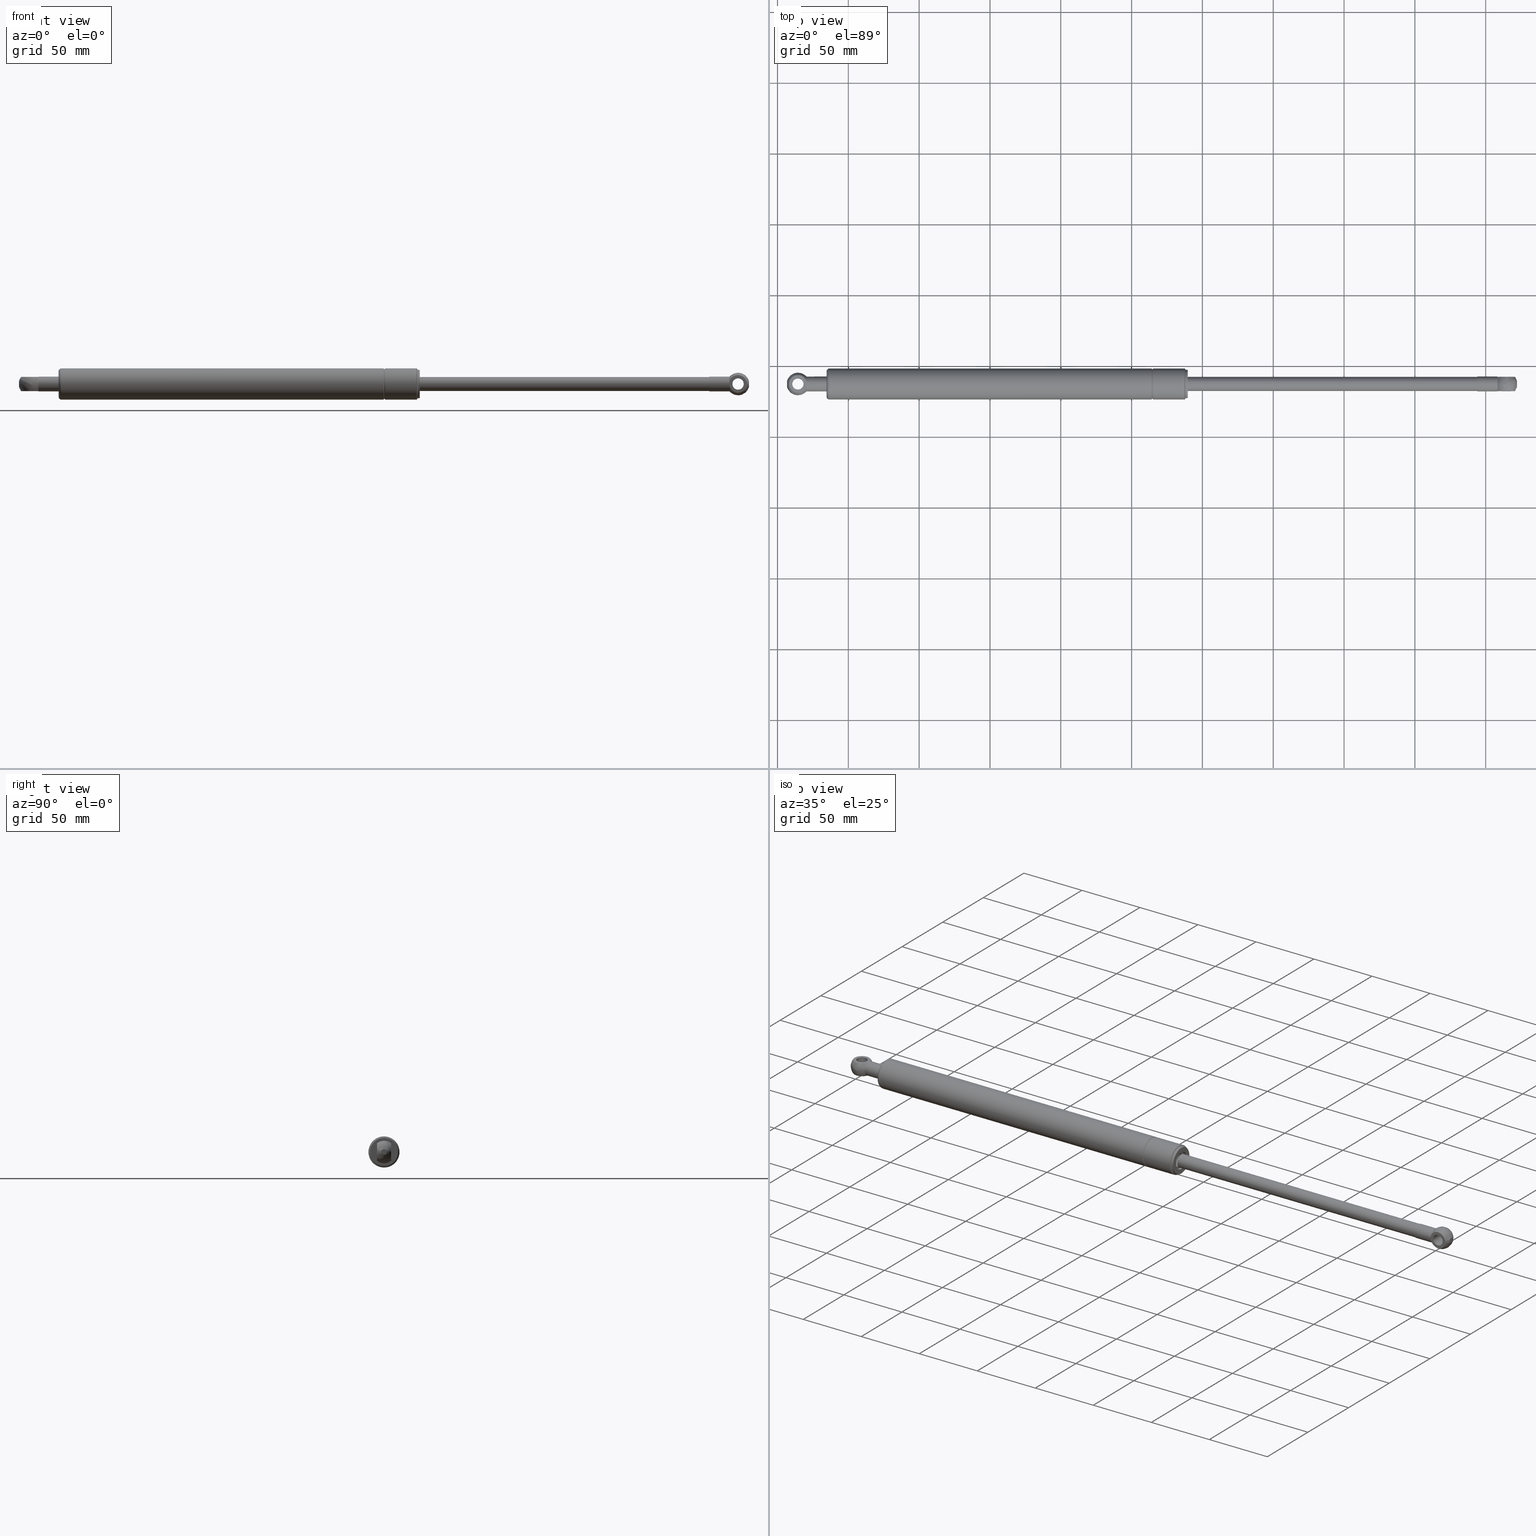
[diagram: canonical four-view strip — front | top / right | iso, engineering-drawing reading convention]
A machine part, canonical four-view strip (front | top / right | iso — engineering-drawing reading convention). The complete STEP part file that produces these views, byte-faithful:
ISO-10303-21;
HEADER;
/* Generated by software containing ST-Developer
 * from STEP Tools, Inc. (www.steptools.com) 
 */

FILE_DESCRIPTION(
/* description */ (''),
/* implementation_level */ '2;1');

FILE_NAME(
/* name */ '\\\\SYNOLOGYNAS\\web\\db2\\SB-500-H\\\X2\B3C4BA74\X0\\\DR_
SB-500-H.stp',
/* time_stamp */ '2023-11-29T14:32:56+09:00',
/* author */ ('user'),
/* organization */ (''),
/* preprocessor_version */ 'ST-DEVELOPER v15.6',
/* originating_system */ 'Autodesk Inventor 2015',
/* authorisation */ '');

FILE_SCHEMA (('AUTOMOTIVE_DESIGN { 1 0 10303 214 3 1 1 }'));
ENDSEC;

DATA;
#10=MECHANICAL_DESIGN_GEOMETRIC_PRESENTATION_REPRESENTATION('',(#43,#42,
#45,#44,#48,#47,#46,#49),#798);
#11=ITEM_DEFINED_TRANSFORMATION($,$,#427,#501);
#12=ITEM_DEFINED_TRANSFORMATION($,$,#451,#502);
#13=ITEM_DEFINED_TRANSFORMATION($,$,#463,#503);
#14=ITEM_DEFINED_TRANSFORMATION($,$,#476,#504);
#15=ITEM_DEFINED_TRANSFORMATION($,$,#476,#505);
#16=(
REPRESENTATION_RELATIONSHIP($,$,#820,#824)
REPRESENTATION_RELATIONSHIP_WITH_TRANSFORMATION(#11)
SHAPE_REPRESENTATION_RELATIONSHIP()
);
#17=(
REPRESENTATION_RELATIONSHIP($,$,#821,#824)
REPRESENTATION_RELATIONSHIP_WITH_TRANSFORMATION(#12)
SHAPE_REPRESENTATION_RELATIONSHIP()
);
#18=(
REPRESENTATION_RELATIONSHIP($,$,#822,#824)
REPRESENTATION_RELATIONSHIP_WITH_TRANSFORMATION(#13)
SHAPE_REPRESENTATION_RELATIONSHIP()
);
#19=(
REPRESENTATION_RELATIONSHIP($,$,#823,#824)
REPRESENTATION_RELATIONSHIP_WITH_TRANSFORMATION(#14)
SHAPE_REPRESENTATION_RELATIONSHIP()
);
#20=(
REPRESENTATION_RELATIONSHIP($,$,#823,#824)
REPRESENTATION_RELATIONSHIP_WITH_TRANSFORMATION(#15)
SHAPE_REPRESENTATION_RELATIONSHIP()
);
#21=CONTEXT_DEPENDENT_SHAPE_REPRESENTATION(#16,#815);
#22=CONTEXT_DEPENDENT_SHAPE_REPRESENTATION(#17,#816);
#23=CONTEXT_DEPENDENT_SHAPE_REPRESENTATION(#18,#817);
#24=CONTEXT_DEPENDENT_SHAPE_REPRESENTATION(#19,#818);
#25=CONTEXT_DEPENDENT_SHAPE_REPRESENTATION(#20,#819);
#26=NEXT_ASSEMBLY_USAGE_OCCURRENCE('DR_SB-500-H-BASE:1',$,$,#830,#826,$);
#27=NEXT_ASSEMBLY_USAGE_OCCURRENCE('DR_SB-500-H-SUPPORT:1',$,$,#830,#827,
$);
#28=NEXT_ASSEMBLY_USAGE_OCCURRENCE('DR_SB-500-H-RING:1',$,$,#830,#828,$);
#29=NEXT_ASSEMBLY_USAGE_OCCURRENCE('DR_SB-500-H HOLE:5',$,$,#830,#829,$);
#30=NEXT_ASSEMBLY_USAGE_OCCURRENCE('DR_SB-500-H HOLE:6',$,$,#830,#829,$);
#31=SPHERICAL_SURFACE('',#495,8.);
#32=B_SPLINE_CURVE_WITH_KNOTS('',3,(#748,#749,#750,#751,#752,#753),
 .UNSPECIFIED.,.F.,.F.,(4,2,4),(2.41667495412591,2.57738882372164,2.73810269331737),
 .UNSPECIFIED.);
#33=B_SPLINE_CURVE_WITH_KNOTS('',3,(#758,#759,#760,#761,#762,#763),
 .UNSPECIFIED.,.F.,.F.,(4,2,4),(0.698415738311486,0.859129607907215,1.01984347750294),
 .UNSPECIFIED.);
#34=SHAPE_REPRESENTATION_RELATIONSHIP('SRR','None',#820,#38);
#35=SHAPE_REPRESENTATION_RELATIONSHIP('SRR','None',#821,#39);
#36=SHAPE_REPRESENTATION_RELATIONSHIP('SRR','None',#822,#40);
#37=SHAPE_REPRESENTATION_RELATIONSHIP('SRR','None',#823,#41);
#38=ADVANCED_BREP_SHAPE_REPRESENTATION($,(#53,#54),#793);
#39=ADVANCED_BREP_SHAPE_REPRESENTATION($,(#55),#794);
#40=ADVANCED_BREP_SHAPE_REPRESENTATION($,(#56),#795);
#41=ADVANCED_BREP_SHAPE_REPRESENTATION($,(#57),#796);
#42=STYLED_ITEM('',(#850),#53);
#43=STYLED_ITEM('',(#850),#54);
#44=STYLED_ITEM('',(#852),#402);
#45=STYLED_ITEM('',(#851),#55);
#46=STYLED_ITEM('',(#853),#406);
#47=STYLED_ITEM('',(#850),#407);
#48=STYLED_ITEM('',(#851),#56);
#49=STYLED_ITEM('',(#854),#57);
#50=TOROIDAL_SURFACE('',#435,11.,0.5);
#51=TOROIDAL_SURFACE('',#438,11.,1.);
#52=TOROIDAL_SURFACE('',#443,9.00000000000001,2.);
#53=MANIFOLD_SOLID_BREP('\X2\C194B9ACB4DC\X0\1',#422);
#54=MANIFOLD_SOLID_BREP('\X2\C194B9ACB4DC\X0\1',#423);
#55=MANIFOLD_SOLID_BREP('\X2\C194B9ACB4DC\X0\1',#424);
#56=MANIFOLD_SOLID_BREP('\X2\C194B9ACB4DC\X0\1',#425);
#57=MANIFOLD_SOLID_BREP('\X2\C194B9ACB4DC\X0\1',#426);
#58=CYLINDRICAL_SURFACE('',#432,4.);
#59=CYLINDRICAL_SURFACE('',#441,10.);
#60=CYLINDRICAL_SURFACE('',#446,11.);
#61=CYLINDRICAL_SURFACE('',#447,9.);
#62=CYLINDRICAL_SURFACE('',#449,11.);
#63=CYLINDRICAL_SURFACE('',#455,4.);
#64=CYLINDRICAL_SURFACE('',#460,5.00000000000002);
#65=CYLINDRICAL_SURFACE('',#464,9.);
#66=CYLINDRICAL_SURFACE('',#469,6.5);
#67=CYLINDRICAL_SURFACE('',#473,5.);
#68=CYLINDRICAL_SURFACE('',#479,3.567);
#69=CYLINDRICAL_SURFACE('',#483,6.2449979983984);
#70=CYLINDRICAL_SURFACE('',#485,6.2449979983984);
#71=CYLINDRICAL_SURFACE('',#487,5.25);
#72=CYLINDRICAL_SURFACE('',#491,4.);
#73=PLANE('',#431);
#74=PLANE('',#434);
#75=PLANE('',#450);
#76=PLANE('',#457);
#77=PLANE('',#458);
#78=PLANE('',#462);
#79=PLANE('',#467);
#80=PLANE('',#471);
#81=PLANE('',#475);
#82=PLANE('',#481);
#83=PLANE('',#494);
#84=PLANE('',#498);
#85=PLANE('',#499);
#86=FACE_BOUND('',#149,.T.);
#87=FACE_BOUND('',#152,.T.);
#88=FACE_BOUND('',#155,.T.);
#89=FACE_BOUND('',#157,.T.);
#90=FACE_BOUND('',#159,.T.);
#91=FACE_BOUND('',#161,.T.);
#92=FACE_BOUND('',#163,.T.);
#93=FACE_BOUND('',#165,.T.);
#94=FACE_BOUND('',#167,.T.);
#95=FACE_BOUND('',#169,.T.);
#96=FACE_BOUND('',#171,.T.);
#97=FACE_BOUND('',#173,.T.);
#98=FACE_BOUND('',#177,.T.);
#99=FACE_BOUND('',#179,.T.);
#100=FACE_BOUND('',#181,.T.);
#101=FACE_BOUND('',#183,.T.);
#102=FACE_BOUND('',#185,.T.);
#103=FACE_BOUND('',#187,.T.);
#104=FACE_BOUND('',#189,.T.);
#105=FACE_BOUND('',#191,.T.);
#106=FACE_BOUND('',#194,.T.);
#107=FACE_BOUND('',#199,.T.);
#108=FACE_BOUND('',#201,.T.);
#109=FACE_BOUND('',#203,.T.);
#110=FACE_BOUND('',#204,.T.);
#111=FACE_BOUND('',#205,.T.);
#112=FACE_BOUND('',#207,.T.);
#113=FACE_BOUND('',#209,.T.);
#114=FACE_OUTER_BOUND('',#148,.T.);
#115=FACE_OUTER_BOUND('',#150,.T.);
#116=FACE_OUTER_BOUND('',#151,.T.);
#117=FACE_OUTER_BOUND('',#153,.T.);
#118=FACE_OUTER_BOUND('',#154,.T.);
#119=FACE_OUTER_BOUND('',#156,.T.);
#120=FACE_OUTER_BOUND('',#158,.T.);
#121=FACE_OUTER_BOUND('',#160,.T.);
#122=FACE_OUTER_BOUND('',#162,.T.);
#123=FACE_OUTER_BOUND('',#164,.T.);
#124=FACE_OUTER_BOUND('',#166,.T.);
#125=FACE_OUTER_BOUND('',#168,.T.);
#126=FACE_OUTER_BOUND('',#170,.T.);
#127=FACE_OUTER_BOUND('',#172,.T.);
#128=FACE_OUTER_BOUND('',#174,.T.);
#129=FACE_OUTER_BOUND('',#175,.T.);
#130=FACE_OUTER_BOUND('',#176,.T.);
#131=FACE_OUTER_BOUND('',#178,.T.);
#132=FACE_OUTER_BOUND('',#180,.T.);
#133=FACE_OUTER_BOUND('',#182,.T.);
#134=FACE_OUTER_BOUND('',#184,.T.);
#135=FACE_OUTER_BOUND('',#186,.T.);
#136=FACE_OUTER_BOUND('',#188,.T.);
#137=FACE_OUTER_BOUND('',#190,.T.);
#138=FACE_OUTER_BOUND('',#192,.T.);
#139=FACE_OUTER_BOUND('',#193,.T.);
#140=FACE_OUTER_BOUND('',#195,.T.);
#141=FACE_OUTER_BOUND('',#196,.T.);
#142=FACE_OUTER_BOUND('',#197,.T.);
#143=FACE_OUTER_BOUND('',#198,.T.);
#144=FACE_OUTER_BOUND('',#200,.T.);
#145=FACE_OUTER_BOUND('',#202,.T.);
#146=FACE_OUTER_BOUND('',#206,.T.);
#147=FACE_OUTER_BOUND('',#208,.T.);
#148=EDGE_LOOP('',(#312));
#149=EDGE_LOOP('',(#313));
#150=EDGE_LOOP('',(#314));
#151=EDGE_LOOP('',(#315));
#152=EDGE_LOOP('',(#316));
#153=EDGE_LOOP('',(#317));
#154=EDGE_LOOP('',(#318));
#155=EDGE_LOOP('',(#319));
#156=EDGE_LOOP('',(#320));
#157=EDGE_LOOP('',(#321));
#158=EDGE_LOOP('',(#322));
#159=EDGE_LOOP('',(#323));
#160=EDGE_LOOP('',(#324));
#161=EDGE_LOOP('',(#325));
#162=EDGE_LOOP('',(#326));
#163=EDGE_LOOP('',(#327));
#164=EDGE_LOOP('',(#328));
#165=EDGE_LOOP('',(#329));
#166=EDGE_LOOP('',(#330));
#167=EDGE_LOOP('',(#331));
#168=EDGE_LOOP('',(#332));
#169=EDGE_LOOP('',(#333));
#170=EDGE_LOOP('',(#334));
#171=EDGE_LOOP('',(#335));
#172=EDGE_LOOP('',(#336));
#173=EDGE_LOOP('',(#337));
#174=EDGE_LOOP('',(#338));
#175=EDGE_LOOP('',(#339));
#176=EDGE_LOOP('',(#340));
#177=EDGE_LOOP('',(#341));
#178=EDGE_LOOP('',(#342));
#179=EDGE_LOOP('',(#343));
#180=EDGE_LOOP('',(#344));
#181=EDGE_LOOP('',(#345));
#182=EDGE_LOOP('',(#346));
#183=EDGE_LOOP('',(#347));
#184=EDGE_LOOP('',(#348));
#185=EDGE_LOOP('',(#349));
#186=EDGE_LOOP('',(#350));
#187=EDGE_LOOP('',(#351));
#188=EDGE_LOOP('',(#352));
#189=EDGE_LOOP('',(#353));
#190=EDGE_LOOP('',(#354));
#191=EDGE_LOOP('',(#355));
#192=EDGE_LOOP('',(#356));
#193=EDGE_LOOP('',(#357));
#194=EDGE_LOOP('',(#358));
#195=EDGE_LOOP('',(#359));
#196=EDGE_LOOP('',(#360,#361));
#197=EDGE_LOOP('',(#362,#363));
#198=EDGE_LOOP('',(#364,#365,#366,#367));
#199=EDGE_LOOP('',(#368));
#200=EDGE_LOOP('',(#369));
#201=EDGE_LOOP('',(#370));
#202=EDGE_LOOP('',(#371));
#203=EDGE_LOOP('',(#372));
#204=EDGE_LOOP('',(#373));
#205=EDGE_LOOP('',(#374,#375,#376,#377));
#206=EDGE_LOOP('',(#378,#379));
#207=EDGE_LOOP('',(#380));
#208=EDGE_LOOP('',(#381,#382));
#209=EDGE_LOOP('',(#383));
#210=CIRCLE('',#429,3.);
#211=CIRCLE('',#430,4.);
#212=CIRCLE('',#433,4.);
#213=CIRCLE('',#436,11.);
#214=CIRCLE('',#437,11.);
#215=CIRCLE('',#439,11.);
#216=CIRCLE('',#440,10.);
#217=CIRCLE('',#442,10.);
#218=CIRCLE('',#444,9.);
#219=CIRCLE('',#445,11.);
#220=CIRCLE('',#448,9.);
#221=CIRCLE('',#453,4.);
#222=CIRCLE('',#454,3.);
#223=CIRCLE('',#456,4.);
#224=CIRCLE('',#459,5.);
#225=CIRCLE('',#461,5.00000000000003);
#226=CIRCLE('',#465,9.);
#227=CIRCLE('',#466,9.);
#228=CIRCLE('',#468,6.5);
#229=CIRCLE('',#470,6.5);
#230=CIRCLE('',#472,5.);
#231=CIRCLE('',#474,5.);
#232=CIRCLE('',#478,3.567);
#233=CIRCLE('',#480,3.567);
#234=CIRCLE('',#482,1.98431348329845);
#235=CIRCLE('',#484,6.2449979983984);
#236=CIRCLE('',#486,6.2449979983984);
#237=CIRCLE('',#488,5.25);
#238=CIRCLE('',#489,5.25);
#239=CIRCLE('',#490,5.25);
#240=CIRCLE('',#492,4.);
#241=CIRCLE('',#493,4.);
#242=CIRCLE('',#496,6.2449979983984);
#243=CIRCLE('',#497,6.2449979983984);
#244=VERTEX_POINT('',#666);
#245=VERTEX_POINT('',#668);
#246=VERTEX_POINT('',#672);
#247=VERTEX_POINT('',#676);
#248=VERTEX_POINT('',#678);
#249=VERTEX_POINT('',#681);
#250=VERTEX_POINT('',#683);
#251=VERTEX_POINT('',#686);
#252=VERTEX_POINT('',#689);
#253=VERTEX_POINT('',#691);
#254=VERTEX_POINT('',#695);
#255=VERTEX_POINT('',#701);
#256=VERTEX_POINT('',#703);
#257=VERTEX_POINT('',#706);
#258=VERTEX_POINT('',#710);
#259=VERTEX_POINT('',#713);
#260=VERTEX_POINT('',#718);
#261=VERTEX_POINT('',#720);
#262=VERTEX_POINT('',#723);
#263=VERTEX_POINT('',#726);
#264=VERTEX_POINT('',#729);
#265=VERTEX_POINT('',#732);
#266=VERTEX_POINT('',#737);
#267=VERTEX_POINT('',#740);
#268=VERTEX_POINT('',#743);
#269=VERTEX_POINT('',#746);
#270=VERTEX_POINT('',#747);
#271=VERTEX_POINT('',#756);
#272=VERTEX_POINT('',#757);
#273=VERTEX_POINT('',#768);
#274=VERTEX_POINT('',#771);
#275=VERTEX_POINT('',#773);
#276=EDGE_CURVE('',#244,#244,#210,.T.);
#277=EDGE_CURVE('',#245,#245,#211,.T.);
#278=EDGE_CURVE('',#246,#246,#212,.T.);
#279=EDGE_CURVE('',#247,#247,#213,.T.);
#280=EDGE_CURVE('',#248,#248,#214,.T.);
#281=EDGE_CURVE('',#249,#249,#215,.T.);
#282=EDGE_CURVE('',#250,#250,#216,.T.);
#283=EDGE_CURVE('',#251,#251,#217,.T.);
#284=EDGE_CURVE('',#252,#252,#218,.T.);
#285=EDGE_CURVE('',#253,#253,#219,.T.);
#286=EDGE_CURVE('',#254,#254,#220,.T.);
#287=EDGE_CURVE('',#255,#255,#221,.T.);
#288=EDGE_CURVE('',#256,#256,#222,.T.);
#289=EDGE_CURVE('',#257,#257,#223,.T.);
#290=EDGE_CURVE('',#258,#258,#224,.T.);
#291=EDGE_CURVE('',#259,#259,#225,.T.);
#292=EDGE_CURVE('',#260,#260,#226,.T.);
#293=EDGE_CURVE('',#261,#261,#227,.T.);
#294=EDGE_CURVE('',#262,#262,#228,.T.);
#295=EDGE_CURVE('',#263,#263,#229,.T.);
#296=EDGE_CURVE('',#264,#264,#230,.T.);
#297=EDGE_CURVE('',#265,#265,#231,.T.);
#298=EDGE_CURVE('',#266,#266,#232,.T.);
#299=EDGE_CURVE('',#267,#267,#233,.T.);
#300=EDGE_CURVE('',#268,#268,#234,.T.);
#301=EDGE_CURVE('',#269,#270,#32,.T.);
#302=EDGE_CURVE('',#269,#270,#235,.T.);
#303=EDGE_CURVE('',#271,#272,#33,.T.);
#304=EDGE_CURVE('',#271,#272,#236,.T.);
#305=EDGE_CURVE('',#271,#270,#237,.T.);
#306=EDGE_CURVE('',#269,#272,#238,.T.);
#307=EDGE_CURVE('',#273,#273,#239,.T.);
#308=EDGE_CURVE('',#274,#274,#240,.T.);
#309=EDGE_CURVE('',#275,#275,#241,.T.);
#310=EDGE_CURVE('',#270,#269,#242,.T.);
#311=EDGE_CURVE('',#272,#271,#243,.T.);
#312=ORIENTED_EDGE('',*,*,#276,.T.);
#313=ORIENTED_EDGE('',*,*,#277,.T.);
#314=ORIENTED_EDGE('',*,*,#276,.F.);
#315=ORIENTED_EDGE('',*,*,#278,.F.);
#316=ORIENTED_EDGE('',*,*,#277,.F.);
#317=ORIENTED_EDGE('',*,*,#278,.T.);
#318=ORIENTED_EDGE('',*,*,#279,.T.);
#319=ORIENTED_EDGE('',*,*,#280,.F.);
#320=ORIENTED_EDGE('',*,*,#281,.T.);
#321=ORIENTED_EDGE('',*,*,#282,.T.);
#322=ORIENTED_EDGE('',*,*,#283,.F.);
#323=ORIENTED_EDGE('',*,*,#282,.F.);
#324=ORIENTED_EDGE('',*,*,#284,.T.);
#325=ORIENTED_EDGE('',*,*,#285,.T.);
#326=ORIENTED_EDGE('',*,*,#279,.F.);
#327=ORIENTED_EDGE('',*,*,#285,.F.);
#328=ORIENTED_EDGE('',*,*,#284,.F.);
#329=ORIENTED_EDGE('',*,*,#286,.F.);
#330=ORIENTED_EDGE('',*,*,#281,.F.);
#331=ORIENTED_EDGE('',*,*,#280,.T.);
#332=ORIENTED_EDGE('',*,*,#283,.T.);
#333=ORIENTED_EDGE('',*,*,#286,.T.);
#334=ORIENTED_EDGE('',*,*,#287,.T.);
#335=ORIENTED_EDGE('',*,*,#288,.T.);
#336=ORIENTED_EDGE('',*,*,#289,.F.);
#337=ORIENTED_EDGE('',*,*,#287,.F.);
#338=ORIENTED_EDGE('',*,*,#288,.F.);
#339=ORIENTED_EDGE('',*,*,#290,.F.);
#340=ORIENTED_EDGE('',*,*,#291,.F.);
#341=ORIENTED_EDGE('',*,*,#290,.T.);
#342=ORIENTED_EDGE('',*,*,#291,.T.);
#343=ORIENTED_EDGE('',*,*,#289,.T.);
#344=ORIENTED_EDGE('',*,*,#292,.F.);
#345=ORIENTED_EDGE('',*,*,#293,.T.);
#346=ORIENTED_EDGE('',*,*,#292,.T.);
#347=ORIENTED_EDGE('',*,*,#294,.F.);
#348=ORIENTED_EDGE('',*,*,#295,.F.);
#349=ORIENTED_EDGE('',*,*,#294,.T.);
#350=ORIENTED_EDGE('',*,*,#295,.T.);
#351=ORIENTED_EDGE('',*,*,#296,.F.);
#352=ORIENTED_EDGE('',*,*,#297,.F.);
#353=ORIENTED_EDGE('',*,*,#296,.T.);
#354=ORIENTED_EDGE('',*,*,#293,.F.);
#355=ORIENTED_EDGE('',*,*,#297,.T.);
#356=ORIENTED_EDGE('',*,*,#298,.T.);
#357=ORIENTED_EDGE('',*,*,#299,.F.);
#358=ORIENTED_EDGE('',*,*,#298,.F.);
#359=ORIENTED_EDGE('',*,*,#300,.F.);
#360=ORIENTED_EDGE('',*,*,#301,.F.);
#361=ORIENTED_EDGE('',*,*,#302,.T.);
#362=ORIENTED_EDGE('',*,*,#303,.F.);
#363=ORIENTED_EDGE('',*,*,#304,.T.);
#364=ORIENTED_EDGE('',*,*,#301,.T.);
#365=ORIENTED_EDGE('',*,*,#305,.F.);
#366=ORIENTED_EDGE('',*,*,#303,.T.);
#367=ORIENTED_EDGE('',*,*,#306,.F.);
#368=ORIENTED_EDGE('',*,*,#307,.F.);
#369=ORIENTED_EDGE('',*,*,#308,.F.);
#370=ORIENTED_EDGE('',*,*,#309,.F.);
#371=ORIENTED_EDGE('',*,*,#307,.T.);
#372=ORIENTED_EDGE('',*,*,#299,.T.);
#373=ORIENTED_EDGE('',*,*,#300,.T.);
#374=ORIENTED_EDGE('',*,*,#305,.T.);
#375=ORIENTED_EDGE('',*,*,#310,.T.);
#376=ORIENTED_EDGE('',*,*,#306,.T.);
#377=ORIENTED_EDGE('',*,*,#311,.T.);
#378=ORIENTED_EDGE('',*,*,#310,.F.);
#379=ORIENTED_EDGE('',*,*,#302,.F.);
#380=ORIENTED_EDGE('',*,*,#308,.T.);
#381=ORIENTED_EDGE('',*,*,#311,.F.);
#382=ORIENTED_EDGE('',*,*,#304,.F.);
#383=ORIENTED_EDGE('',*,*,#309,.T.);
#384=CONICAL_SURFACE('',#428,3.5,44.9999999999996);
#385=CONICAL_SURFACE('',#452,3.5,45.);
#386=CONICAL_SURFACE('',#477,1.7835,59.);
#387=ADVANCED_FACE('',(#114,#86),#384,.T.);
#388=ADVANCED_FACE('',(#115),#73,.T.);
#389=ADVANCED_FACE('',(#116,#87),#58,.T.);
#390=ADVANCED_FACE('',(#117),#74,.T.);
#391=ADVANCED_FACE('',(#118,#88),#50,.F.);
#392=ADVANCED_FACE('',(#119,#89),#51,.F.);
#393=ADVANCED_FACE('',(#120,#90),#59,.T.);
#394=ADVANCED_FACE('',(#121,#91),#52,.T.);
#395=ADVANCED_FACE('',(#122,#92),#60,.T.);
#396=ADVANCED_FACE('',(#123,#93),#61,.F.);
#397=ADVANCED_FACE('',(#124,#94),#62,.T.);
#398=ADVANCED_FACE('',(#125,#95),#75,.T.);
#399=ADVANCED_FACE('',(#126,#96),#385,.T.);
#400=ADVANCED_FACE('',(#127,#97),#63,.T.);
#401=ADVANCED_FACE('',(#128),#76,.F.);
#402=ADVANCED_FACE('',(#129),#77,.T.);
#403=ADVANCED_FACE('',(#130,#98),#64,.T.);
#404=ADVANCED_FACE('',(#131,#99),#78,.T.);
#405=ADVANCED_FACE('',(#132,#100),#65,.T.);
#406=ADVANCED_FACE('',(#133,#101),#79,.T.);
#407=ADVANCED_FACE('',(#134,#102),#66,.F.);
#408=ADVANCED_FACE('',(#135,#103),#80,.T.);
#409=ADVANCED_FACE('',(#136,#104),#67,.F.);
#410=ADVANCED_FACE('',(#137,#105),#81,.T.);
#411=ADVANCED_FACE('',(#138),#386,.F.);
#412=ADVANCED_FACE('',(#139,#106),#68,.F.);
#413=ADVANCED_FACE('',(#140),#82,.F.);
#414=ADVANCED_FACE('',(#141),#69,.F.);
#415=ADVANCED_FACE('',(#142),#70,.F.);
#416=ADVANCED_FACE('',(#143,#107),#71,.T.);
#417=ADVANCED_FACE('',(#144,#108),#72,.F.);
#418=ADVANCED_FACE('',(#145,#109),#83,.F.);
#419=ADVANCED_FACE('',(#110,#111),#31,.T.);
#420=ADVANCED_FACE('',(#146,#112),#84,.F.);
#421=ADVANCED_FACE('',(#147,#113),#85,.F.);
#422=CLOSED_SHELL('',(#387,#388,#389,#390));
#423=CLOSED_SHELL('',(#391,#392,#393,#394,#395,#396,#397,#398));
#424=CLOSED_SHELL('',(#399,#400,#401,#402,#403,#404));
#425=CLOSED_SHELL('',(#405,#406,#407,#408,#409,#410));
#426=CLOSED_SHELL('',(#411,#412,#413,#414,#415,#416,#417,#418,#419,#420,
#421));
#427=AXIS2_PLACEMENT_3D('placement',#664,#506,#507);
#428=AXIS2_PLACEMENT_3D('',#665,#508,#509);
#429=AXIS2_PLACEMENT_3D('',#667,#510,#511);
#430=AXIS2_PLACEMENT_3D('',#669,#512,#513);
#431=AXIS2_PLACEMENT_3D('',#670,#514,#515);
#432=AXIS2_PLACEMENT_3D('',#671,#516,#517);
#433=AXIS2_PLACEMENT_3D('',#673,#518,#519);
#434=AXIS2_PLACEMENT_3D('',#674,#520,#521);
#435=AXIS2_PLACEMENT_3D('',#675,#522,#523);
#436=AXIS2_PLACEMENT_3D('',#677,#524,#525);
#437=AXIS2_PLACEMENT_3D('',#679,#526,#527);
#438=AXIS2_PLACEMENT_3D('',#680,#528,#529);
#439=AXIS2_PLACEMENT_3D('',#682,#530,#531);
#440=AXIS2_PLACEMENT_3D('',#684,#532,#533);
#441=AXIS2_PLACEMENT_3D('',#685,#534,#535);
#442=AXIS2_PLACEMENT_3D('',#687,#536,#537);
#443=AXIS2_PLACEMENT_3D('',#688,#538,#539);
#444=AXIS2_PLACEMENT_3D('',#690,#540,#541);
#445=AXIS2_PLACEMENT_3D('',#692,#542,#543);
#446=AXIS2_PLACEMENT_3D('',#693,#544,#545);
#447=AXIS2_PLACEMENT_3D('',#694,#546,#547);
#448=AXIS2_PLACEMENT_3D('',#696,#548,#549);
#449=AXIS2_PLACEMENT_3D('',#697,#550,#551);
#450=AXIS2_PLACEMENT_3D('',#698,#552,#553);
#451=AXIS2_PLACEMENT_3D('placement',#699,#554,#555);
#452=AXIS2_PLACEMENT_3D('',#700,#556,#557);
#453=AXIS2_PLACEMENT_3D('',#702,#558,#559);
#454=AXIS2_PLACEMENT_3D('',#704,#560,#561);
#455=AXIS2_PLACEMENT_3D('',#705,#562,#563);
#456=AXIS2_PLACEMENT_3D('',#707,#564,#565);
#457=AXIS2_PLACEMENT_3D('',#708,#566,#567);
#458=AXIS2_PLACEMENT_3D('',#709,#568,#569);
#459=AXIS2_PLACEMENT_3D('',#711,#570,#571);
#460=AXIS2_PLACEMENT_3D('',#712,#572,#573);
#461=AXIS2_PLACEMENT_3D('',#714,#574,#575);
#462=AXIS2_PLACEMENT_3D('',#715,#576,#577);
#463=AXIS2_PLACEMENT_3D('placement',#716,#578,#579);
#464=AXIS2_PLACEMENT_3D('',#717,#580,#581);
#465=AXIS2_PLACEMENT_3D('',#719,#582,#583);
#466=AXIS2_PLACEMENT_3D('',#721,#584,#585);
#467=AXIS2_PLACEMENT_3D('',#722,#586,#587);
#468=AXIS2_PLACEMENT_3D('',#724,#588,#589);
#469=AXIS2_PLACEMENT_3D('',#725,#590,#591);
#470=AXIS2_PLACEMENT_3D('',#727,#592,#593);
#471=AXIS2_PLACEMENT_3D('',#728,#594,#595);
#472=AXIS2_PLACEMENT_3D('',#730,#596,#597);
#473=AXIS2_PLACEMENT_3D('',#731,#598,#599);
#474=AXIS2_PLACEMENT_3D('',#733,#600,#601);
#475=AXIS2_PLACEMENT_3D('',#734,#602,#603);
#476=AXIS2_PLACEMENT_3D('placement',#735,#604,#605);
#477=AXIS2_PLACEMENT_3D('',#736,#606,#607);
#478=AXIS2_PLACEMENT_3D('',#738,#608,#609);
#479=AXIS2_PLACEMENT_3D('',#739,#610,#611);
#480=AXIS2_PLACEMENT_3D('',#741,#612,#613);
#481=AXIS2_PLACEMENT_3D('',#742,#614,#615);
#482=AXIS2_PLACEMENT_3D('',#744,#616,#617);
#483=AXIS2_PLACEMENT_3D('',#745,#618,#619);
#484=AXIS2_PLACEMENT_3D('',#754,#620,#621);
#485=AXIS2_PLACEMENT_3D('',#755,#622,#623);
#486=AXIS2_PLACEMENT_3D('',#764,#624,#625);
#487=AXIS2_PLACEMENT_3D('',#765,#626,#627);
#488=AXIS2_PLACEMENT_3D('',#766,#628,#629);
#489=AXIS2_PLACEMENT_3D('',#767,#630,#631);
#490=AXIS2_PLACEMENT_3D('',#769,#632,#633);
#491=AXIS2_PLACEMENT_3D('',#770,#634,#635);
#492=AXIS2_PLACEMENT_3D('',#772,#636,#637);
#493=AXIS2_PLACEMENT_3D('',#774,#638,#639);
#494=AXIS2_PLACEMENT_3D('',#775,#640,#641);
#495=AXIS2_PLACEMENT_3D('',#776,#642,#643);
#496=AXIS2_PLACEMENT_3D('',#777,#644,#645);
#497=AXIS2_PLACEMENT_3D('',#778,#646,#647);
#498=AXIS2_PLACEMENT_3D('',#779,#648,#649);
#499=AXIS2_PLACEMENT_3D('',#780,#650,#651);
#500=AXIS2_PLACEMENT_3D('placement',#781,#652,#653);
#501=AXIS2_PLACEMENT_3D('',#782,#654,#655);
#502=AXIS2_PLACEMENT_3D('',#783,#656,#657);
#503=AXIS2_PLACEMENT_3D('',#784,#658,#659);
#504=AXIS2_PLACEMENT_3D('',#785,#660,#661);
#505=AXIS2_PLACEMENT_3D('',#786,#662,#663);
#506=DIRECTION('axis',(0.,0.,1.));
#507=DIRECTION('refdir',(1.,0.,0.));
#508=DIRECTION('center_axis',(-1.,0.,1.18952466924125E-16));
#509=DIRECTION('ref_axis',(-5.09796286817675E-17,0.,-1.));
#510=DIRECTION('center_axis',(-1.,0.,1.18952466924124E-16));
#511=DIRECTION('ref_axis',(-1.18952466924124E-16,0.,-1.));
#512=DIRECTION('center_axis',(1.,0.,-1.18952466924124E-16));
#513=DIRECTION('ref_axis',(0.,0.,-1.));
#514=DIRECTION('center_axis',(1.,0.,-1.18952466924124E-16));
#515=DIRECTION('ref_axis',(0.,0.,-1.));
#516=DIRECTION('center_axis',(-1.,0.,1.18952466924124E-16));
#517=DIRECTION('ref_axis',(0.,0.,1.));
#518=DIRECTION('center_axis',(-1.,0.,1.18952466924124E-16));
#519=DIRECTION('ref_axis',(0.,0.,1.));
#520=DIRECTION('center_axis',(-1.,0.,1.18952466924124E-16));
#521=DIRECTION('ref_axis',(0.,0.,1.));
#522=DIRECTION('center_axis',(-1.,0.,0.));
#523=DIRECTION('ref_axis',(0.,0.,1.));
#524=DIRECTION('center_axis',(-1.,0.,0.));
#525=DIRECTION('ref_axis',(0.,0.,1.));
#526=DIRECTION('center_axis',(-1.,0.,0.));
#527=DIRECTION('ref_axis',(0.,0.,1.));
#528=DIRECTION('center_axis',(-1.,0.,0.));
#529=DIRECTION('ref_axis',(0.,0.,1.));
#530=DIRECTION('center_axis',(-1.,0.,0.));
#531=DIRECTION('ref_axis',(0.,0.,1.));
#532=DIRECTION('center_axis',(1.,0.,0.));
#533=DIRECTION('ref_axis',(0.,1.22464679914735E-16,-1.));
#534=DIRECTION('center_axis',(-1.,0.,0.));
#535=DIRECTION('ref_axis',(0.,0.,1.));
#536=DIRECTION('center_axis',(-1.,0.,0.));
#537=DIRECTION('ref_axis',(0.,0.,1.));
#538=DIRECTION('center_axis',(-1.,0.,0.));
#539=DIRECTION('ref_axis',(0.,0.,1.));
#540=DIRECTION('center_axis',(-1.,0.,0.));
#541=DIRECTION('ref_axis',(0.,-1.,0.));
#542=DIRECTION('center_axis',(1.,0.,0.));
#543=DIRECTION('ref_axis',(0.,1.22464679914735E-16,-1.));
#544=DIRECTION('center_axis',(-1.,0.,0.));
#545=DIRECTION('ref_axis',(0.,0.,1.));
#546=DIRECTION('center_axis',(-1.,0.,0.));
#547=DIRECTION('ref_axis',(0.,-1.,0.));
#548=DIRECTION('center_axis',(1.,0.,0.));
#549=DIRECTION('ref_axis',(0.,-1.,0.));
#550=DIRECTION('center_axis',(-1.,0.,0.));
#551=DIRECTION('ref_axis',(0.,0.,1.));
#552=DIRECTION('center_axis',(-1.,0.,0.));
#553=DIRECTION('ref_axis',(0.,0.,1.));
#554=DIRECTION('axis',(0.,0.,1.));
#555=DIRECTION('refdir',(1.,0.,0.));
#556=DIRECTION('center_axis',(1.,0.,0.));
#557=DIRECTION('ref_axis',(0.,0.,-1.));
#558=DIRECTION('center_axis',(-1.,0.,0.));
#559=DIRECTION('ref_axis',(0.,0.,-1.));
#560=DIRECTION('center_axis',(1.,0.,0.));
#561=DIRECTION('ref_axis',(0.,0.,-1.));
#562=DIRECTION('center_axis',(-1.,0.,0.));
#563=DIRECTION('ref_axis',(0.,0.,1.));
#564=DIRECTION('center_axis',(1.,0.,0.));
#565=DIRECTION('ref_axis',(0.,0.,1.));
#566=DIRECTION('center_axis',(1.,0.,0.));
#567=DIRECTION('ref_axis',(0.,0.,-1.));
#568=DIRECTION('center_axis',(1.,0.,0.));
#569=DIRECTION('ref_axis',(0.,0.,-1.));
#570=DIRECTION('center_axis',(-1.,0.,0.));
#571=DIRECTION('ref_axis',(0.,0.,1.));
#572=DIRECTION('center_axis',(-1.,0.,0.));
#573=DIRECTION('ref_axis',(0.,0.,1.));
#574=DIRECTION('center_axis',(-1.,0.,0.));
#575=DIRECTION('ref_axis',(0.,0.,1.));
#576=DIRECTION('center_axis',(-1.,0.,0.));
#577=DIRECTION('ref_axis',(0.,0.,1.));
#578=DIRECTION('axis',(0.,0.,1.));
#579=DIRECTION('refdir',(1.,0.,0.));
#580=DIRECTION('center_axis',(-1.,0.,4.93038065763132E-32));
#581=DIRECTION('ref_axis',(0.,0.,1.));
#582=DIRECTION('center_axis',(-1.,0.,4.93038065763132E-32));
#583=DIRECTION('ref_axis',(0.,0.,1.));
#584=DIRECTION('center_axis',(-1.,0.,4.93038065763132E-32));
#585=DIRECTION('ref_axis',(0.,0.,1.));
#586=DIRECTION('center_axis',(-1.,0.,4.93038065763132E-32));
#587=DIRECTION('ref_axis',(4.93038065763132E-32,0.,1.));
#588=DIRECTION('center_axis',(-1.,0.,4.93038065763132E-32));
#589=DIRECTION('ref_axis',(0.,0.,1.));
#590=DIRECTION('center_axis',(-1.,0.,4.93038065763132E-32));
#591=DIRECTION('ref_axis',(0.,0.,1.));
#592=DIRECTION('center_axis',(-1.,0.,4.93038065763132E-32));
#593=DIRECTION('ref_axis',(0.,0.,1.));
#594=DIRECTION('center_axis',(-1.,0.,4.93038065763132E-32));
#595=DIRECTION('ref_axis',(0.,0.,1.));
#596=DIRECTION('center_axis',(-1.,0.,4.93038065763132E-32));
#597=DIRECTION('ref_axis',(0.,0.,1.));
#598=DIRECTION('center_axis',(-1.,0.,4.93038065763132E-32));
#599=DIRECTION('ref_axis',(0.,0.,1.));
#600=DIRECTION('center_axis',(-1.,0.,4.93038065763132E-32));
#601=DIRECTION('ref_axis',(0.,0.,1.));
#602=DIRECTION('center_axis',(1.,0.,-4.93038065763132E-32));
#603=DIRECTION('ref_axis',(0.,0.,-1.));
#604=DIRECTION('axis',(0.,0.,1.));
#605=DIRECTION('refdir',(1.,0.,0.));
#606=DIRECTION('center_axis',(0.,-1.,0.));
#607=DIRECTION('ref_axis',(1.,0.,0.));
#608=DIRECTION('center_axis',(0.,-1.,0.));
#609=DIRECTION('ref_axis',(1.,0.,0.));
#610=DIRECTION('center_axis',(0.,-1.,0.));
#611=DIRECTION('ref_axis',(1.,0.,0.));
#612=DIRECTION('center_axis',(0.,1.,0.));
#613=DIRECTION('ref_axis',(1.,0.,0.));
#614=DIRECTION('center_axis',(0.,-1.,0.));
#615=DIRECTION('ref_axis',(0.,0.,-1.));
#616=DIRECTION('center_axis',(0.,-1.,0.));
#617=DIRECTION('ref_axis',(0.,0.,1.));
#618=DIRECTION('center_axis',(1.,0.,0.));
#619=DIRECTION('ref_axis',(0.,0.966589298406967,-0.256330115681182));
#620=DIRECTION('center_axis',(-1.,0.,0.));
#621=DIRECTION('ref_axis',(0.,0.,-1.));
#622=DIRECTION('center_axis',(1.,0.,0.));
#623=DIRECTION('ref_axis',(0.,0.966589298406967,-0.256330115681182));
#624=DIRECTION('center_axis',(1.,0.,0.));
#625=DIRECTION('ref_axis',(0.,0.,1.));
#626=DIRECTION('center_axis',(0.,1.,0.));
#627=DIRECTION('ref_axis',(1.,0.,0.));
#628=DIRECTION('center_axis',(0.,1.,0.));
#629=DIRECTION('ref_axis',(1.,-2.11471052309554E-16,0.));
#630=DIRECTION('center_axis',(0.,1.,0.));
#631=DIRECTION('ref_axis',(1.,-2.11471052309554E-16,0.));
#632=DIRECTION('center_axis',(0.,-1.,0.));
#633=DIRECTION('ref_axis',(1.,0.,0.));
#634=DIRECTION('center_axis',(-1.,0.,0.));
#635=DIRECTION('ref_axis',(0.,-1.,0.));
#636=DIRECTION('center_axis',(-1.,0.,0.));
#637=DIRECTION('ref_axis',(0.,-1.,0.));
#638=DIRECTION('center_axis',(1.,0.,0.));
#639=DIRECTION('ref_axis',(0.,-1.,0.));
#640=DIRECTION('center_axis',(0.,1.,0.));
#641=DIRECTION('ref_axis',(0.,0.,1.));
#642=DIRECTION('center_axis',(6.12323399573677E-17,0.,1.));
#643=DIRECTION('ref_axis',(1.,0.,0.));
#644=DIRECTION('center_axis',(-1.,0.,0.));
#645=DIRECTION('ref_axis',(0.,0.,-1.));
#646=DIRECTION('center_axis',(1.,0.,0.));
#647=DIRECTION('ref_axis',(0.,0.,1.));
#648=DIRECTION('center_axis',(-1.,0.,0.));
#649=DIRECTION('ref_axis',(0.,0.,1.));
#650=DIRECTION('center_axis',(1.,0.,0.));
#651=DIRECTION('ref_axis',(0.,0.,-1.));
#652=DIRECTION('axis',(0.,0.,1.));
#653=DIRECTION('refdir',(1.,0.,0.));
#654=DIRECTION('',(-7.06136808275736E-16,0.823531358260194,0.567270748375165));
#655=DIRECTION('',(-1.,-3.74700270810992E-16,-7.0082828429463E-16));
#656=DIRECTION('',(1.12421410143598E-14,0.327208869543628,0.944952038831591));
#657=DIRECTION('',(-1.,3.70901391114822E-14,-9.4616598386277E-16));
#658=DIRECTION('',(-3.05038395826596E-16,0.975421713099676,0.220346276605015));
#659=DIRECTION('',(-1.,-1.11022302462516E-16,-8.92889294058806E-16));
#660=DIRECTION('',(-8.50812094157883E-17,-1.,1.75162308040602E-46));
#661=DIRECTION('',(-9.35676335489186E-16,7.9608474245153E-32,1.));
#662=DIRECTION('',(9.35676335489186E-16,-2.80259692864963E-45,-1.));
#663=DIRECTION('',(2.46413933514192E-14,1.,2.30563686324035E-29));
#664=CARTESIAN_POINT('',(0.,0.,0.));
#665=CARTESIAN_POINT('Origin',(261.498039208148,0.,8.94126043046332E-15));
#666=CARTESIAN_POINT('',(261.998039208148,3.67394039744206E-16,3.00000000000001));
#667=CARTESIAN_POINT('Origin',(261.998039208148,0.,8.88178419700125E-15));
#668=CARTESIAN_POINT('',(260.998039208148,-4.89858719658941E-16,4.00000000000001));
#669=CARTESIAN_POINT('Origin',(260.998039208148,0.,9.00073666392538E-15));
#670=CARTESIAN_POINT('Origin',(261.998039208148,0.,2.00000000000001));
#671=CARTESIAN_POINT('Origin',(258.498039208148,0.,9.29811783123568E-15));
#672=CARTESIAN_POINT('',(254.998039208148,0.,4.00000000000001));
#673=CARTESIAN_POINT('Origin',(254.998039208148,0.,9.71445146547012E-15));
#674=CARTESIAN_POINT('Origin',(254.998039208148,0.,2.00000000000001));
#675=CARTESIAN_POINT('Origin',(25.,0.,0.));
#676=CARTESIAN_POINT('',(25.5,0.,11.));
#677=CARTESIAN_POINT('Origin',(25.5,0.,0.));
#678=CARTESIAN_POINT('',(24.5,0.,11.));
#679=CARTESIAN_POINT('Origin',(24.5,0.,0.));
#680=CARTESIAN_POINT('Origin',(1.,0.,0.));
#681=CARTESIAN_POINT('',(2.,0.,11.));
#682=CARTESIAN_POINT('Origin',(2.,0.,0.));
#683=CARTESIAN_POINT('',(1.,-2.44929359829471E-15,10.));
#684=CARTESIAN_POINT('Origin',(1.,0.,0.));
#685=CARTESIAN_POINT('Origin',(1.,0.,0.));
#686=CARTESIAN_POINT('',(0.,0.,10.));
#687=CARTESIAN_POINT('Origin',(0.,0.,0.));
#688=CARTESIAN_POINT('Origin',(252.998039208148,0.,0.));
#689=CARTESIAN_POINT('',(254.998039208148,9.,-1.10218211923262E-15));
#690=CARTESIAN_POINT('Origin',(254.998039208148,0.,0.));
#691=CARTESIAN_POINT('',(252.998039208148,-2.69422295812418E-15,11.));
#692=CARTESIAN_POINT('Origin',(252.998039208148,0.,0.));
#693=CARTESIAN_POINT('Origin',(140.249019604074,0.,0.));
#694=CARTESIAN_POINT('Origin',(187.5,0.,0.));
#695=CARTESIAN_POINT('',(0.,-9.,0.));
#696=CARTESIAN_POINT('Origin',(0.,0.,0.));
#697=CARTESIAN_POINT('Origin',(13.25,0.,0.));
#698=CARTESIAN_POINT('Origin',(0.,0.,5.));
#699=CARTESIAN_POINT('',(0.,0.,0.));
#700=CARTESIAN_POINT('Origin',(-7.5,0.,0.));
#701=CARTESIAN_POINT('',(-7.,4.89858719658941E-16,4.));
#702=CARTESIAN_POINT('Origin',(-7.,0.,0.));
#703=CARTESIAN_POINT('',(-8.,-3.67394039744206E-16,3.));
#704=CARTESIAN_POINT('Origin',(-8.,0.,0.));
#705=CARTESIAN_POINT('Origin',(3.5979718122907E-32,0.,0.));
#706=CARTESIAN_POINT('',(3.5979718122907E-32,0.,4.));
#707=CARTESIAN_POINT('Origin',(3.5979718122907E-32,0.,0.));
#708=CARTESIAN_POINT('Origin',(-8.,0.,-9.8645675837472E-17));
#709=CARTESIAN_POINT('Origin',(204.5,0.,2.5));
#710=CARTESIAN_POINT('',(204.5,0.,5.));
#711=CARTESIAN_POINT('Origin',(204.5,0.,0.));
#712=CARTESIAN_POINT('Origin',(102.25,0.,0.));
#713=CARTESIAN_POINT('',(7.1959436245814E-32,0.,5.00000000000003));
#714=CARTESIAN_POINT('Origin',(0.,0.,0.));
#715=CARTESIAN_POINT('Origin',(3.5979718122907E-32,0.,2.50000000000002));
#716=CARTESIAN_POINT('',(0.,0.,0.));
#717=CARTESIAN_POINT('Origin',(5.,0.,-2.46519032881566E-31));
#718=CARTESIAN_POINT('',(-1.64036226228641E-31,0.,9.));
#719=CARTESIAN_POINT('Origin',(0.,0.,0.));
#720=CARTESIAN_POINT('',(10.,0.,9.));
#721=CARTESIAN_POINT('Origin',(10.,0.,-4.93038065763132E-31));
#722=CARTESIAN_POINT('Origin',(-3.82702124733548E-16,0.,7.75));
#723=CARTESIAN_POINT('',(-7.65404249467096E-16,0.,6.5));
#724=CARTESIAN_POINT('Origin',(0.,0.,0.));
#725=CARTESIAN_POINT('Origin',(0.999999999999999,0.,-4.93038065763132E-32));
#726=CARTESIAN_POINT('',(2.,0.,6.5));
#727=CARTESIAN_POINT('Origin',(2.,0.,-9.86076131526265E-32));
#728=CARTESIAN_POINT('Origin',(2.,0.,5.75));
#729=CARTESIAN_POINT('',(2.,0.,5.));
#730=CARTESIAN_POINT('Origin',(2.,0.,-9.86076131526263E-32));
#731=CARTESIAN_POINT('Origin',(6.,0.,-2.95822839457879E-31));
#732=CARTESIAN_POINT('',(10.,0.,5.));
#733=CARTESIAN_POINT('Origin',(10.,0.,-4.93038065763132E-31));
#734=CARTESIAN_POINT('Origin',(10.,0.,7.));
#735=CARTESIAN_POINT('',(0.,0.,0.));
#736=CARTESIAN_POINT('Origin',(0.,-5.17836508596435,0.));
#737=CARTESIAN_POINT('',(3.567,-6.25,0.));
#738=CARTESIAN_POINT('Origin',(0.,-6.25,0.));
#739=CARTESIAN_POINT('Origin',(0.,-13.25,0.));
#740=CARTESIAN_POINT('',(3.567,-20.25,0.));
#741=CARTESIAN_POINT('Origin',(0.,-20.25,0.));
#742=CARTESIAN_POINT('Origin',(0.,7.75,0.));
#743=CARTESIAN_POINT('',(2.43008315582638E-16,7.75,-1.98431348329845));
#744=CARTESIAN_POINT('Origin',(0.,7.75,0.));
#745=CARTESIAN_POINT('Origin',(8.5,0.,0.));
#746=CARTESIAN_POINT('',(5.,-6.03634823382482,-1.60078105935821));
#747=CARTESIAN_POINT('',(5.,-6.03634823382482,1.60078105935821));
#748=CARTESIAN_POINT('Ctrl Pts',(5.,-6.03634823382482,-1.60078105935821));
#749=CARTESIAN_POINT('Ctrl Pts',(5.16503701177522,-6.17305092672981,-1.08529203976239));
#750=CARTESIAN_POINT('Ctrl Pts',(5.25,-6.2449979983984,-0.53571289865243));
#751=CARTESIAN_POINT('Ctrl Pts',(5.25,-6.2449979983984,0.535712898652428));
#752=CARTESIAN_POINT('Ctrl Pts',(5.16503701177522,-6.17305092672981,1.08529203976239));
#753=CARTESIAN_POINT('Ctrl Pts',(5.,-6.03634823382482,1.60078105935821));
#754=CARTESIAN_POINT('Origin',(5.,0.,0.));
#755=CARTESIAN_POINT('Origin',(-8.5,0.,0.));
#756=CARTESIAN_POINT('',(-5.,-6.03634823382482,1.60078105935821));
#757=CARTESIAN_POINT('',(-5.,-6.03634823382482,-1.60078105935821));
#758=CARTESIAN_POINT('Ctrl Pts',(-5.,-6.03634823382482,1.60078105935821));
#759=CARTESIAN_POINT('Ctrl Pts',(-5.16503701177522,-6.17305092672981,1.08529203976239));
#760=CARTESIAN_POINT('Ctrl Pts',(-5.25,-6.2449979983984,0.53571289865243));
#761=CARTESIAN_POINT('Ctrl Pts',(-5.25,-6.2449979983984,-0.535712898652428));
#762=CARTESIAN_POINT('Ctrl Pts',(-5.16503701177522,-6.17305092672981,-1.08529203976239));
#763=CARTESIAN_POINT('Ctrl Pts',(-5.,-6.03634823382482,-1.60078105935821));
#764=CARTESIAN_POINT('Origin',(-5.,0.,0.));
#765=CARTESIAN_POINT('Origin',(0.,-20.25,0.));
#766=CARTESIAN_POINT('Origin',(0.,-6.03634823382482,0.));
#767=CARTESIAN_POINT('Origin',(0.,-6.03634823382482,0.));
#768=CARTESIAN_POINT('',(-5.25,-20.25,6.42939569552361E-16));
#769=CARTESIAN_POINT('Origin',(0.,-20.25,0.));
#770=CARTESIAN_POINT('Origin',(29.1220236797292,7.80625564189563E-16,-4.30211422042248E-15));
#771=CARTESIAN_POINT('',(5.,4.,-4.79197294008142E-15));
#772=CARTESIAN_POINT('Origin',(5.,7.80625564189563E-16,-4.30211422042248E-15));
#773=CARTESIAN_POINT('',(-5.,2.90766844530622E-16,4.));
#774=CARTESIAN_POINT('Origin',(-5.,7.80625564189563E-16,-4.30211422042248E-15));
#775=CARTESIAN_POINT('Origin',(2.29804174387325E-16,-20.25,8.8112938462314E-17));
#776=CARTESIAN_POINT('Origin',(0.,0.,0.));
#777=CARTESIAN_POINT('Origin',(5.,0.,0.));
#778=CARTESIAN_POINT('Origin',(-5.,0.,0.));
#779=CARTESIAN_POINT('Origin',(5.,0.,0.));
#780=CARTESIAN_POINT('Origin',(-5.,0.,0.));
#781=CARTESIAN_POINT('',(0.,0.,0.));
#782=CARTESIAN_POINT('',(289.654283633191,37.3474254082918,1.8290779084518E-13));
#783=CARTESIAN_POINT('',(494.154283633189,37.3474254082765,3.6967470180686E-13));
#784=CARTESIAN_POINT('',(289.654283633191,37.3474254082919,1.77890594667057E-13));
#785=CARTESIAN_POINT('',(14.4062444250442,37.3474254082917,-1.11626446706539E-14));
#786=CARTESIAN_POINT('',(514.404283633189,37.3474254082812,3.88311377028262E-13));
#787=UNCERTAINTY_MEASURE_WITH_UNIT(LENGTH_MEASURE(0.01),#799,
'DISTANCE_ACCURACY_VALUE',
'Maximum model space distance between geometric entities at asserted c
onnectivities');
#788=UNCERTAINTY_MEASURE_WITH_UNIT(LENGTH_MEASURE(0.01),#799,
'DISTANCE_ACCURACY_VALUE',
'Maximum model space distance between geometric entities at asserted c
onnectivities');
#789=UNCERTAINTY_MEASURE_WITH_UNIT(LENGTH_MEASURE(0.01),#799,
'DISTANCE_ACCURACY_VALUE',
'Maximum model space distance between geometric entities at asserted c
onnectivities');
#790=UNCERTAINTY_MEASURE_WITH_UNIT(LENGTH_MEASURE(0.01),#799,
'DISTANCE_ACCURACY_VALUE',
'Maximum model space distance between geometric entities at asserted c
onnectivities');
#791=UNCERTAINTY_MEASURE_WITH_UNIT(LENGTH_MEASURE(0.01),#799,
'DISTANCE_ACCURACY_VALUE',
'Maximum model space distance between geometric entities at asserted c
onnectivities');
#792=UNCERTAINTY_MEASURE_WITH_UNIT(LENGTH_MEASURE(1.E-6),#799,
'DISTANCE_ACCURACY_VALUE',
'Maximum model space distance between geometric entities at asserted c
onnectivities');
#793=(
GEOMETRIC_REPRESENTATION_CONTEXT(3)
GLOBAL_UNCERTAINTY_ASSIGNED_CONTEXT((#787))
GLOBAL_UNIT_ASSIGNED_CONTEXT((#799,#802,#800))
REPRESENTATION_CONTEXT('','3D')
);
#794=(
GEOMETRIC_REPRESENTATION_CONTEXT(3)
GLOBAL_UNCERTAINTY_ASSIGNED_CONTEXT((#788))
GLOBAL_UNIT_ASSIGNED_CONTEXT((#799,#802,#800))
REPRESENTATION_CONTEXT('','3D')
);
#795=(
GEOMETRIC_REPRESENTATION_CONTEXT(3)
GLOBAL_UNCERTAINTY_ASSIGNED_CONTEXT((#789))
GLOBAL_UNIT_ASSIGNED_CONTEXT((#799,#802,#800))
REPRESENTATION_CONTEXT('','3D')
);
#796=(
GEOMETRIC_REPRESENTATION_CONTEXT(3)
GLOBAL_UNCERTAINTY_ASSIGNED_CONTEXT((#790))
GLOBAL_UNIT_ASSIGNED_CONTEXT((#799,#802,#800))
REPRESENTATION_CONTEXT('','3D')
);
#797=(
GEOMETRIC_REPRESENTATION_CONTEXT(3)
GLOBAL_UNCERTAINTY_ASSIGNED_CONTEXT((#791))
GLOBAL_UNIT_ASSIGNED_CONTEXT((#799,#802,#800))
REPRESENTATION_CONTEXT('','3D')
);
#798=(
GEOMETRIC_REPRESENTATION_CONTEXT(3)
GLOBAL_UNCERTAINTY_ASSIGNED_CONTEXT((#792))
GLOBAL_UNIT_ASSIGNED_CONTEXT((#799,#802,#800))
REPRESENTATION_CONTEXT('','3D')
);
#799=(
LENGTH_UNIT()
NAMED_UNIT(*)
SI_UNIT(.MILLI.,.METRE.)
);
#800=(
NAMED_UNIT(*)
SI_UNIT($,.STERADIAN.)
SOLID_ANGLE_UNIT()
);
#801=DIMENSIONAL_EXPONENTS(0.,0.,0.,0.,0.,0.,0.);
#802=(
CONVERSION_BASED_UNIT('degree',#804)
NAMED_UNIT(#801)
PLANE_ANGLE_UNIT()
);
#803=(
NAMED_UNIT(*)
PLANE_ANGLE_UNIT()
SI_UNIT($,.RADIAN.)
);
#804=PLANE_ANGLE_MEASURE_WITH_UNIT(PLANE_ANGLE_MEASURE(0.01745329252),#803);
#805=SHAPE_DEFINITION_REPRESENTATION(#810,#820);
#806=SHAPE_DEFINITION_REPRESENTATION(#811,#821);
#807=SHAPE_DEFINITION_REPRESENTATION(#812,#822);
#808=SHAPE_DEFINITION_REPRESENTATION(#813,#823);
#809=SHAPE_DEFINITION_REPRESENTATION(#814,#824);
#810=PRODUCT_DEFINITION_SHAPE('',$,#826);
#811=PRODUCT_DEFINITION_SHAPE('',$,#827);
#812=PRODUCT_DEFINITION_SHAPE('',$,#828);
#813=PRODUCT_DEFINITION_SHAPE('',$,#829);
#814=PRODUCT_DEFINITION_SHAPE('',$,#830);
#815=PRODUCT_DEFINITION_SHAPE($,$,#26);
#816=PRODUCT_DEFINITION_SHAPE($,$,#27);
#817=PRODUCT_DEFINITION_SHAPE($,$,#28);
#818=PRODUCT_DEFINITION_SHAPE($,$,#29);
#819=PRODUCT_DEFINITION_SHAPE($,$,#30);
#820=SHAPE_REPRESENTATION('',(#427),#793);
#821=SHAPE_REPRESENTATION('',(#451),#794);
#822=SHAPE_REPRESENTATION('',(#463),#795);
#823=SHAPE_REPRESENTATION('',(#476),#796);
#824=SHAPE_REPRESENTATION('',(#500,#501,#502,#503,#504,#505),#797);
#825=PRODUCT_DEFINITION_CONTEXT('part definition',#842,'design');
#826=PRODUCT_DEFINITION('DR_SB-500-H-BASE','DR_SB-500-H-BASE',#831,#825);
#827=PRODUCT_DEFINITION('DR_SB-500-H-SUPPORT','DR_SB-500-H-SUPPORT',#832,
#825);
#828=PRODUCT_DEFINITION('DR_SB-500-H-RING','DR_SB-500-H-RING',#833,#825);
#829=PRODUCT_DEFINITION('DR_SB-500-H HOLE','DR_SB-500-H HOLE',#834,#825);
#830=PRODUCT_DEFINITION('DR_SB-500-H','DR_SB-500-H',#835,#825);
#831=PRODUCT_DEFINITION_FORMATION('',$,#844);
#832=PRODUCT_DEFINITION_FORMATION('',$,#845);
#833=PRODUCT_DEFINITION_FORMATION('',$,#846);
#834=PRODUCT_DEFINITION_FORMATION('',$,#847);
#835=PRODUCT_DEFINITION_FORMATION('',$,#848);
#836=PRODUCT_RELATED_PRODUCT_CATEGORY('DR_SB-500-H-BASE',
'DR_SB-500-H-BASE',(#844));
#837=PRODUCT_RELATED_PRODUCT_CATEGORY('DR_SB-500-H-SUPPORT',
'DR_SB-500-H-SUPPORT',(#845));
#838=PRODUCT_RELATED_PRODUCT_CATEGORY('DR_SB-500-H-RING',
'DR_SB-500-H-RING',(#846));
#839=PRODUCT_RELATED_PRODUCT_CATEGORY('DR_SB-500-H HOLE',
'DR_SB-500-H HOLE',(#847));
#840=PRODUCT_RELATED_PRODUCT_CATEGORY('DR_SB-500-H','DR_SB-500-H',(#848));
#841=APPLICATION_PROTOCOL_DEFINITION('international standard',
'automotive_design',2009,#842);
#842=APPLICATION_CONTEXT(
'Core Data for Automotive Mechanical Design Process');
#843=PRODUCT_CONTEXT('part definition',#842,'mechanical');
#844=PRODUCT('DR_SB-500-H-BASE','DR_SB-500-H-BASE',$,(#843));
#845=PRODUCT('DR_SB-500-H-SUPPORT','DR_SB-500-H-SUPPORT',$,(#843));
#846=PRODUCT('DR_SB-500-H-RING','DR_SB-500-H-RING',$,(#843));
#847=PRODUCT('DR_SB-500-H HOLE','DR_SB-500-H HOLE',$,(#843));
#848=PRODUCT('DR_SB-500-H','DR_SB-500-H',$,(#843));
#849=PRESENTATION_STYLE_ASSIGNMENT((#855));
#850=PRESENTATION_STYLE_ASSIGNMENT((#856));
#851=PRESENTATION_STYLE_ASSIGNMENT((#857));
#852=PRESENTATION_STYLE_ASSIGNMENT((#858));
#853=PRESENTATION_STYLE_ASSIGNMENT((#859));
#854=PRESENTATION_STYLE_ASSIGNMENT((#860));
#855=SURFACE_STYLE_USAGE(.BOTH.,#861);
#856=SURFACE_STYLE_USAGE(.BOTH.,#862);
#857=SURFACE_STYLE_USAGE(.BOTH.,#863);
#858=SURFACE_STYLE_USAGE(.BOTH.,#864);
#859=SURFACE_STYLE_USAGE(.BOTH.,#865);
#860=SURFACE_STYLE_USAGE(.BOTH.,#866);
#861=SURFACE_SIDE_STYLE($,(#867));
#862=SURFACE_SIDE_STYLE($,(#868));
#863=SURFACE_SIDE_STYLE($,(#869));
#864=SURFACE_SIDE_STYLE($,(#870));
#865=SURFACE_SIDE_STYLE($,(#871));
#866=SURFACE_SIDE_STYLE($,(#872));
#867=SURFACE_STYLE_FILL_AREA(#873);
#868=SURFACE_STYLE_FILL_AREA(#874);
#869=SURFACE_STYLE_FILL_AREA(#875);
#870=SURFACE_STYLE_FILL_AREA(#876);
#871=SURFACE_STYLE_FILL_AREA(#877);
#872=SURFACE_STYLE_FILL_AREA(#878);
#873=FILL_AREA_STYLE($,(#879));
#874=FILL_AREA_STYLE($,(#880));
#875=FILL_AREA_STYLE($,(#881));
#876=FILL_AREA_STYLE($,(#882));
#877=FILL_AREA_STYLE($,(#883));
#878=FILL_AREA_STYLE($,(#884));
#879=FILL_AREA_STYLE_COLOUR($,#885);
#880=FILL_AREA_STYLE_COLOUR($,#886);
#881=FILL_AREA_STYLE_COLOUR($,#887);
#882=FILL_AREA_STYLE_COLOUR($,#888);
#883=FILL_AREA_STYLE_COLOUR($,#889);
#884=FILL_AREA_STYLE_COLOUR($,#890);
#885=COLOUR_RGB('',0.196078431372549,0.196078431372549,0.196078431372549);
#886=COLOUR_RGB('',0.313725490196078,0.313725490196078,0.313725490196078);
#887=COLOUR_RGB('',0.745098039215686,0.737254901960784,0.729411764705882);
#888=COLOUR_RGB('',0.745098039215686,0.737254901960784,0.729411764705882);
#889=COLOUR_RGB('',0.313725490196078,0.313725490196078,0.313725490196078);
#890=COLOUR_RGB('',0.352941176470588,0.384313725490196,0.4);
ENDSEC;
END-ISO-10303-21;
